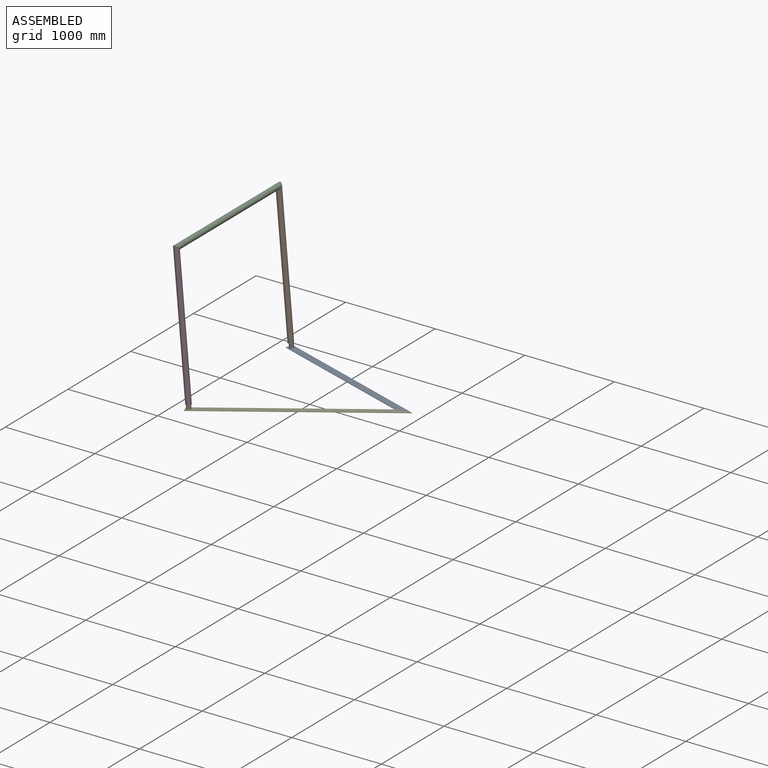
[diagram: assembled view]
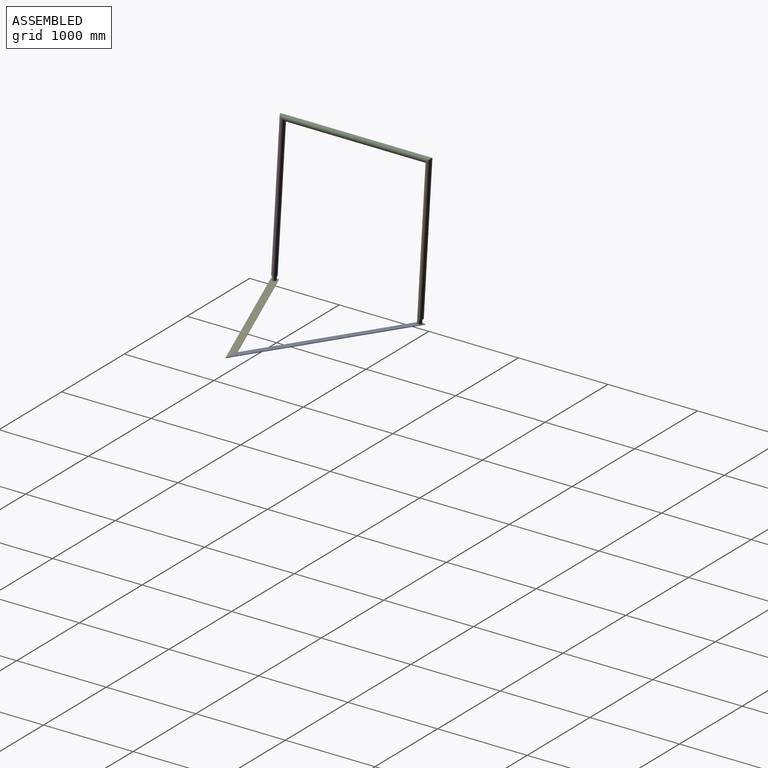
[diagram: assembled view, second angle]
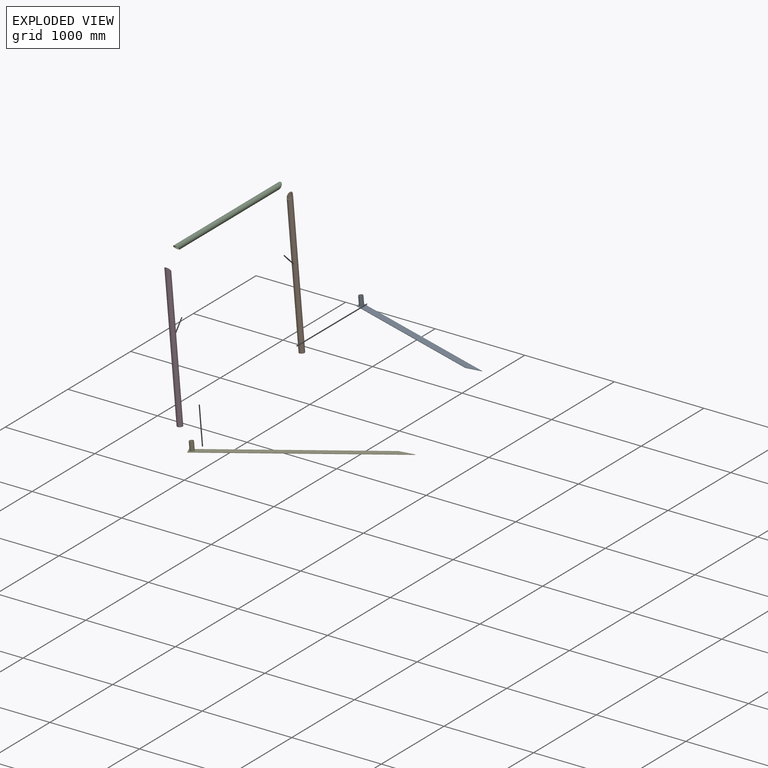
[diagram: exploded view]
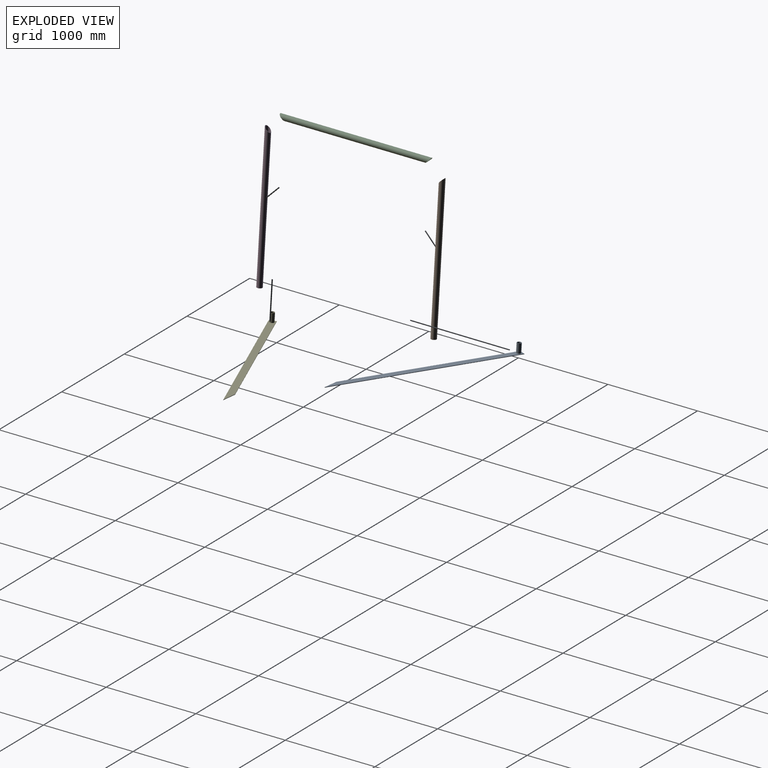
[diagram: exploded view, second angle]
ASSEMBLY  parts=5 mates=4
PART A: 10 faces, bbox 76.2x2133.6x106.4 mm
  f0: plane 2133.6x76.2mm, normal (0,0,1), area 154199.6mm2, adj f1,f2,f3,f6,f9
  f1: plane 1961.65x4.76mm, normal (-1,0,0), area 9342.3mm2, adj f0,f3,f4,f9
  f2: plane 2133.6x4.76mm, normal (1,0,0), area 10161.3mm2, adj f0,f3,f4,f9
  f3: plane 76.2x4.76mm, normal (0,1,0), area 362.9mm2, adj f0,f1,f2,f4
  f4: plane 2133.6x76.2mm, normal (0,0,-1), area 156028.8mm2, adj f1,f2,f3,f9
  f5: cylinder r=20.45mm len=101.6mm, axis (0,0,-1), area 13052.8mm2, adj f7,f8
  f6: cylinder r=24.13mm len=101.6mm, axis (0,0,-1), area 15403.9mm2, adj f0,f7
  f7: plane 48.26x48.26mm, normal (0,0,1), area 515.8mm2, adj f5,f6
  f8: plane 40.89x40.89mm, normal (0,0,1), area 1313.4mm2, adj f5
  f9: plane 171.96x76.2mm, normal (-0.91,-0.41,0), area 895.7mm2, adj f0,f1,f2,f4
PART B: 4 faces, bbox 60.5x60.5x1581.4 mm
  f0: cylinder r=26.25mm len=1577.41mm, axis (0,0,-1), area 255845.6mm2, adj f2,f3
  f1: cylinder r=30.23mm len=1581.39mm, axis (0,0,-1), area 294587.6mm2, adj f2,f3
  f2: plane 60.45x60.45mm, normal (0,0,1), area 705.3mm2, adj f0,f1
  f3: plane 60.45x60.45mm, normal (0.71,0,-0.71), area 997.4mm2, adj f0,f1
PART C: 4 faces, bbox 73.2x73.2x1704.2 mm
  f0: cylinder r=26.25mm len=1683.55mm, axis (0,0,-1), area 269022mm2, adj f2,f3
  f1: cylinder r=30.23mm len=1691.5mm, axis (0,0,-1), area 309759.2mm2, adj f2,f3
  f2: plane 60.45x60.45mm, normal (0.71,0,-0.71), area 997.4mm2, adj f0,f1
  f3: plane 73.16x73.16mm, normal (0.71,0,0.71), area 997.4mm2, adj f0,f1
PART D: same geometry as B
PART E: 10 faces, bbox 76.2x2133.6x101.6 mm
  f0: plane 2133.6x76.2mm, normal (0,0,1), area 156028.8mm2, adj f1,f2,f3,f9
  f1: plane 1961.65x4.76mm, normal (-1,0,0), area 9342.3mm2, adj f0,f3,f4,f9
  f2: plane 2133.6x4.76mm, normal (1,0,0), area 10161.3mm2, adj f0,f3,f4,f9
  f3: plane 76.2x4.76mm, normal (0,1,0), area 362.9mm2, adj f0,f1,f2,f4
  f4: plane 2133.6x76.2mm, normal (0,0,-1), area 154199.6mm2, adj f1,f2,f3,f6,f9
  f5: cylinder r=20.45mm len=96.84mm, axis (0,0,1), area 12440.9mm2, adj f7,f8
  f6: cylinder r=24.13mm len=96.84mm, axis (0,0,1), area 14681.8mm2, adj f4,f7
  f7: plane 48.26x48.26mm, normal (0,0,-1), area 515.8mm2, adj f5,f6
  f8: plane 40.89x40.89mm, normal (0,0,-1), area 1313.4mm2, adj f5
  f9: plane 171.96x76.2mm, normal (-0.91,-0.41,0), area 895.7mm2, adj f0,f1,f2,f4
PLACE A rot(axis=(-0.04,-0.07,1),66deg) t=(661.71,-926.96,-1743.98)mm
PLACE B rot(axis=(-0.71,0.71,-0.03),176.5deg) t=(-131.22,-373.45,-176.63)mm
PLACE C rot(axis=(0.61,0.56,-0.56),117.2deg) t=(-5.66,-214.33,-325.37)mm
PLACE D rot(axis=(0.71,0.71,0.03),176.5deg) t=(-19.53,-1752.85,-166.86)mm fixed
PLACE E rot(axis=(-0.84,0.55,-0.04),177.3deg) t=(661.01,-1206.86,-1748.82)mm
MATE fastened C.f2 <-> B.f3  axis (0.06,0.71,-0.7) through (-72.47,-247.63,-204.92)mm
MATE revolute E.f5 <-> D.f0  axis (-0.09,0,1) through (58.29,-1878.67,-1699.56)mm
MATE fastened E.f9 <-> A.f9  axis (0,1,0) through (1900.4,-1071.89,-1638)mm
MATE fastened D.f3 <-> C.f3  axis (-0.06,0.71,0.7) through (-72.47,-1878.67,-204.92)mm
